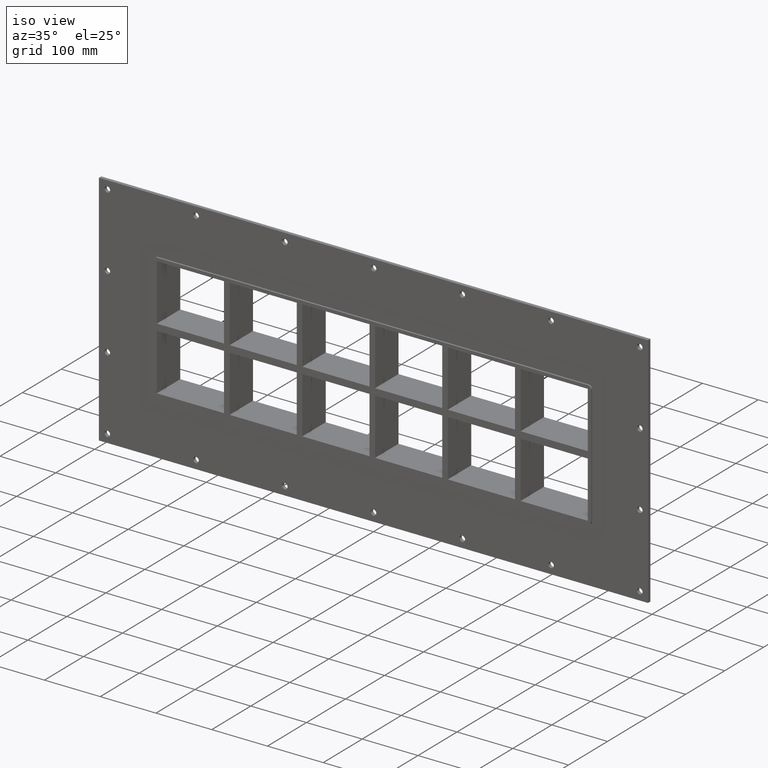
[diagram: clean part render]
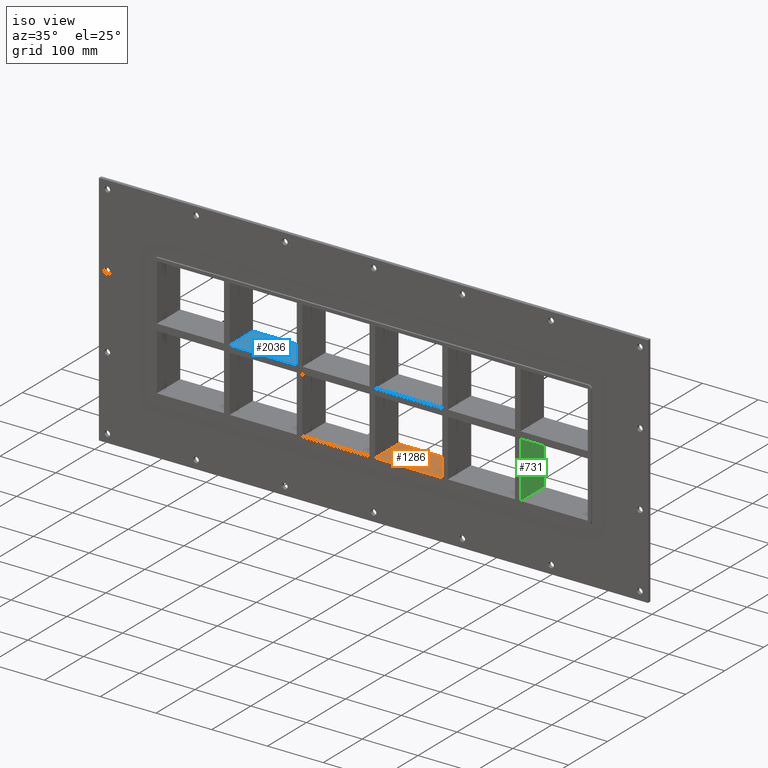
[diagram: same view with three faces highlighted in distinct colors, each labeled with its STEP entity id]
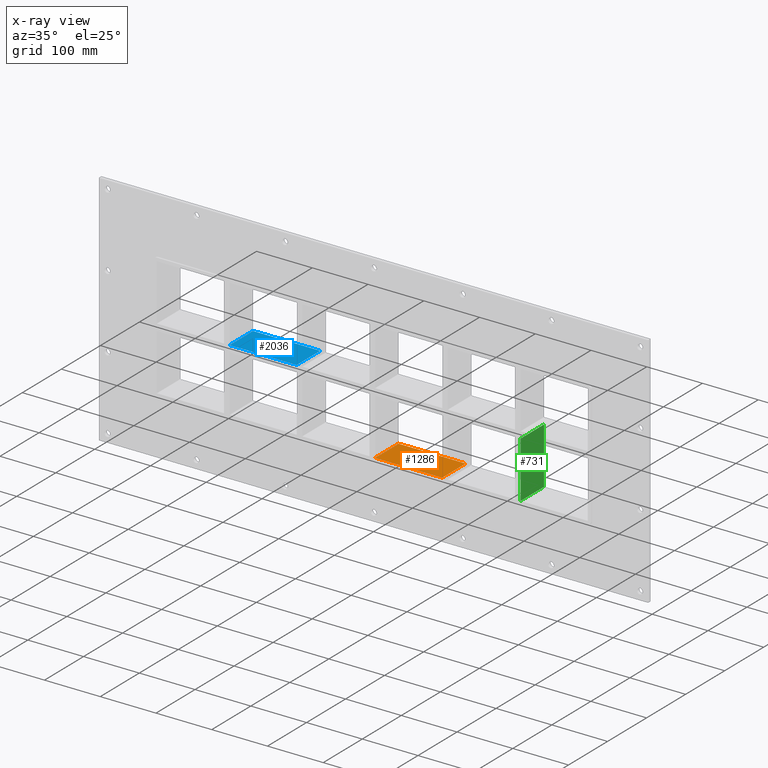
[diagram: x-ray of the same camera — body ghosted, the three highlighted faces saturated]
A machine part, iso view with three faces highlighted in distinct colors.
The next image is the same camera in x-ray (body ghosted, the three faces saturated) — at least one of them is partly hidden behind the body in this view.
Their STEP definitions:

[orange] entity #1286 — the highlighted planar face has unit normal (0, 0, -1).
#787=CARTESIAN_POINT('',(125.49999999999869,57.0,-107.00000000000003));
#788=VERTEX_POINT('',#787);
#795=CARTESIAN_POINT('',(125.49999999999869,-3.0,-107.00000000000003));
#796=VERTEX_POINT('',#795);
#797=CARTESIAN_POINT('',(125.49999999999869,-3.0,-107.00000000000003));
#798=DIRECTION('',(0.0,1.0,0.0));
#799=VECTOR('',#798,60.000000000000007);
#800=LINE('',#797,#799);
#801=EDGE_CURVE('',#796,#788,#800,.T.);
#1027=CARTESIAN_POINT('',(4.999999999996376,-3.0,-106.99999999998428));
#1028=VERTEX_POINT('',#1027);
#1035=CARTESIAN_POINT('',(4.999999999996376,57.0,-106.99999999998428));
#1036=VERTEX_POINT('',#1035);
#1037=CARTESIAN_POINT('',(4.999999999996376,57.000000000000007,-107.00000000000003));
#1038=DIRECTION('',(0.0,-1.0,0.0));
#1039=VECTOR('',#1038,60.000000000000007);
#1040=LINE('',#1037,#1039);
#1041=EDGE_CURVE('',#1036,#1028,#1040,.T.);
#1265=CARTESIAN_POINT('',(386.50000000000006,0.0,-107.00000000000003));
#1266=DIRECTION('',(0.0,0.0,-1.0));
#1267=DIRECTION('',(-1.0,0.0,0.0));
#1268=AXIS2_PLACEMENT_3D('',#1265,#1266,#1267);
#1269=PLANE('',#1268);
#1270=ORIENTED_EDGE('',*,*,#801,.T.);
#1271=CARTESIAN_POINT('',(4.99999999999639,57.0,-107.00000000000003));
#1272=DIRECTION('',(1.0,0.0,0.0));
#1273=VECTOR('',#1272,120.5000000000023);
#1274=LINE('',#1271,#1273);
#1275=EDGE_CURVE('',#1036,#788,#1274,.T.);
#1276=ORIENTED_EDGE('',*,*,#1275,.F.);
#1277=ORIENTED_EDGE('',*,*,#1041,.T.);
#1278=CARTESIAN_POINT('',(125.49999999999869,-3.0,-107.00000000000003));
#1279=DIRECTION('',(-1.0,0.0,0.0));
#1280=VECTOR('',#1279,120.5000000000023);
#1281=LINE('',#1278,#1280);
#1282=EDGE_CURVE('',#796,#1028,#1281,.T.);
#1283=ORIENTED_EDGE('',*,*,#1282,.F.);
#1284=EDGE_LOOP('',(#1270,#1276,#1277,#1283));
#1285=FACE_OUTER_BOUND('',#1284,.T.);
#1286=ADVANCED_FACE('',(#1285),#1269,.F.);

[blue] entity #2036 — the highlighted planar face has unit normal (0, 0, 1).
#1057=CARTESIAN_POINT('',(-135.50000000000139,-3.0,5.999999999999943));
#1058=VERTEX_POINT('',#1057);
#1059=CARTESIAN_POINT('',(-135.50000000000139,57.0,5.999999999999943));
#1060=VERTEX_POINT('',#1059);
#1061=CARTESIAN_POINT('',(-135.50000000000142,-3.0,5.999999999999943));
#1062=DIRECTION('',(0.0,1.0,0.0));
#1063=VECTOR('',#1062,60.0);
#1064=LINE('',#1061,#1063);
#1065=EDGE_CURVE('',#1058,#1060,#1064,.T.);
#1514=CARTESIAN_POINT('',(-256.00000000000364,-3.0,5.999999999999943));
#1515=VERTEX_POINT('',#1514);
#1516=CARTESIAN_POINT('',(-256.00000000000364,-3.0,5.999999999999943));
#1517=DIRECTION('',(1.0,0.0,0.0));
#1518=VECTOR('',#1517,120.50000000000225);
#1519=LINE('',#1516,#1518);
#1520=EDGE_CURVE('',#1515,#1058,#1519,.T.);
#2003=CARTESIAN_POINT('',(-256.00000000000364,57.0,5.999999999999943));
#2004=VERTEX_POINT('',#2003);
#2011=CARTESIAN_POINT('',(-256.00000000000364,57.0,5.999999999999943));
#2012=DIRECTION('',(1.0,0.0,0.0));
#2013=VECTOR('',#2012,120.50000000000225);
#2014=LINE('',#2011,#2013);
#2015=EDGE_CURVE('',#2004,#1060,#2014,.T.);
#2020=CARTESIAN_POINT('',(-386.49999999999977,-3.0,5.999999999999943));
#2021=DIRECTION('',(0.0,0.0,1.0));
#2022=DIRECTION('',(1.0,0.0,0.0));
#2023=AXIS2_PLACEMENT_3D('',#2020,#2021,#2022);
#2024=PLANE('',#2023);
#2025=ORIENTED_EDGE('',*,*,#1065,.T.);
#2026=ORIENTED_EDGE('',*,*,#2015,.F.);
#2027=CARTESIAN_POINT('',(-256.00000000000364,-3.0,5.999999999999943));
#2028=DIRECTION('',(0.0,1.0,0.0));
#2029=VECTOR('',#2028,60.0);
#2030=LINE('',#2027,#2029);
#2031=EDGE_CURVE('',#1515,#2004,#2030,.T.);
#2032=ORIENTED_EDGE('',*,*,#2031,.F.);
#2033=ORIENTED_EDGE('',*,*,#1520,.T.);
#2034=EDGE_LOOP('',(#2025,#2026,#2032,#2033));
#2035=FACE_OUTER_BOUND('',#2034,.T.);
#2036=ADVANCED_FACE('',(#2035),#2024,.T.);

[green] entity #731 — the highlighted planar face has unit normal (1, 0, 0).
#692=CARTESIAN_POINT('',(265.99999999999642,-3.0,107.00000000000003));
#693=DIRECTION('',(1.0,0.0,0.0));
#694=DIRECTION('',(0.0,0.0,-1.0));
#695=AXIS2_PLACEMENT_3D('',#692,#693,#694);
#696=PLANE('',#695);
#697=CARTESIAN_POINT('',(265.99999999999642,-3.0,-6.000000000009358));
#698=VERTEX_POINT('',#697);
#699=CARTESIAN_POINT('',(265.99999999999642,57.0,-6.000000000009358));
#700=VERTEX_POINT('',#699);
#701=CARTESIAN_POINT('',(265.99999999999636,-3.0,-6.000000000009367));
#702=DIRECTION('',(0.0,1.0,0.0));
#703=VECTOR('',#702,60.0);
#704=LINE('',#701,#703);
#705=EDGE_CURVE('',#698,#700,#704,.T.);
#706=ORIENTED_EDGE('',*,*,#705,.F.);
#707=CARTESIAN_POINT('',(265.99999999999642,-3.0,-106.99999999998428));
#708=VERTEX_POINT('',#707);
#709=CARTESIAN_POINT('',(265.99999999999642,-3.0,-6.000000000009351));
#710=DIRECTION('',(0.0,0.0,-1.0));
#711=VECTOR('',#710,100.99999999997493);
#712=LINE('',#709,#711);
#713=EDGE_CURVE('',#698,#708,#712,.T.);
#714=ORIENTED_EDGE('',*,*,#713,.T.);
#715=CARTESIAN_POINT('',(265.99999999999642,57.0,-106.99999999998428));
#716=VERTEX_POINT('',#715);
#717=CARTESIAN_POINT('',(265.99999999999636,57.000000000000007,-107.00000000000003));
#718=DIRECTION('',(0.0,-1.0,0.0));
#719=VECTOR('',#718,60.000000000000007);
#720=LINE('',#717,#719);
#721=EDGE_CURVE('',#716,#708,#720,.T.);
#722=ORIENTED_EDGE('',*,*,#721,.F.);
#723=CARTESIAN_POINT('',(265.99999999999642,57.0,-6.000000000009351));
#724=DIRECTION('',(0.0,0.0,-1.0));
#725=VECTOR('',#724,100.99999999997493);
#726=LINE('',#723,#725);
#727=EDGE_CURVE('',#700,#716,#726,.T.);
#728=ORIENTED_EDGE('',*,*,#727,.F.);
#729=EDGE_LOOP('',(#706,#714,#722,#728));
#730=FACE_OUTER_BOUND('',#729,.T.);
#731=ADVANCED_FACE('',(#730),#696,.T.);